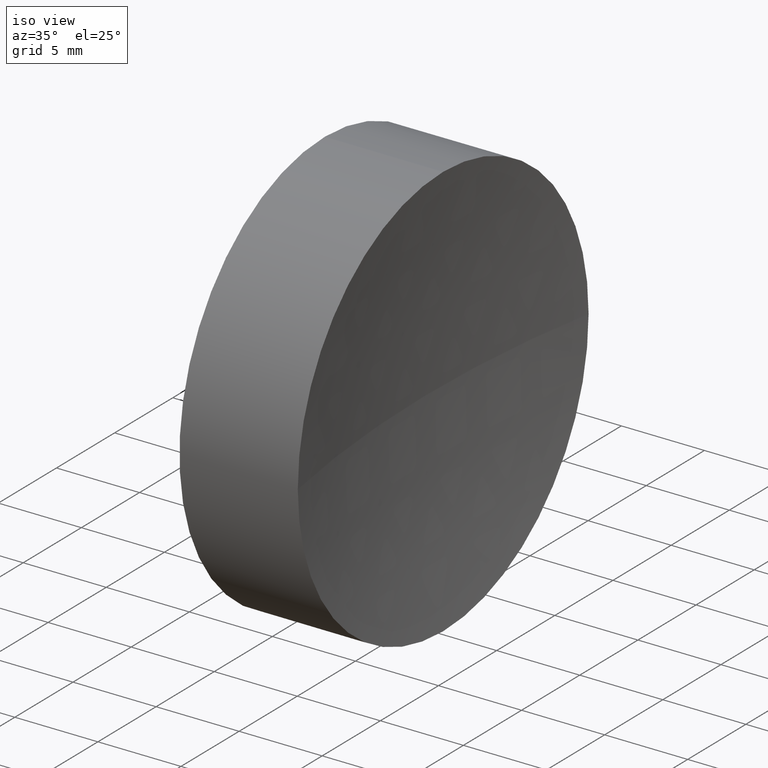
[diagram: clean part render]
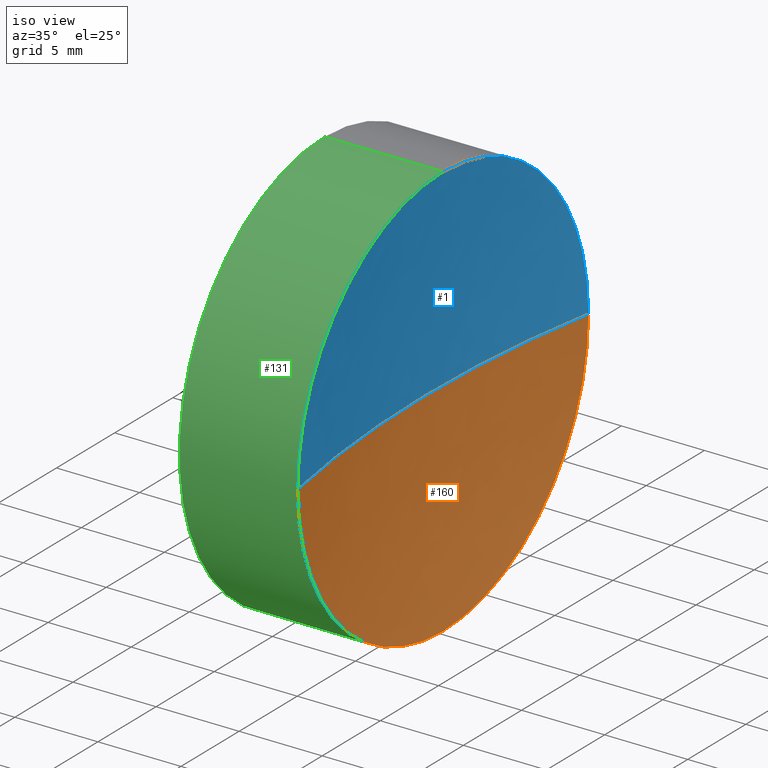
[diagram: same view with three faces highlighted in distinct colors, each labeled with its STEP entity id]
A machine part, iso view with three faces highlighted in distinct colors.
Their STEP definitions:

[orange] entity #160 — the highlighted spherical surface has radius 70 mm.
#2 = EDGE_CURVE ( 'NONE', #163, #71, #20, .T. ) ;
#10 = DIRECTION ( 'NONE',  ( 0.0000000000000000000, 0.0000000000000000000, -1.000000000000000000 ) ) ;
#16 = AXIS2_PLACEMENT_3D ( 'NONE', #50, #171, #142 ) ;
#20 = CIRCLE ( 'NONE', #157, 12.50000000000002500 ) ;
#21 = DIRECTION ( 'NONE',  ( 0.0000000000000000000, 0.0000000000000000000, 1.000000000000000000 ) ) ;
#24 = CARTESIAN_POINT ( 'NONE',  ( 191.0926555310580000, 69.37802112337244900, 0.0000000000000000000 ) ) ;
#29 = CIRCLE ( 'NONE', #180, 69.99999999999998600 ) ;
#30 = VERTEX_POINT ( 'NONE', #154 ) ;
#34 = CARTESIAN_POINT ( 'NONE',  ( 122.2177689612784500, 69.37802112337243400, 0.0000000000000000000 ) ) ;
#40 = DIRECTION ( 'NONE',  ( 0.0000000000000000000, -1.000000000000000000, -1.224646799147353200E-016 ) ) ;
#41 = ORIENTED_EDGE ( 'NONE', *, *, #72, .F. ) ;
#50 = CARTESIAN_POINT ( 'NONE',  ( 191.0926555310580000, 69.37802112337244900, 0.0000000000000000000 ) ) ;
#56 = CIRCLE ( 'NONE', #58, 69.99999999999998600 ) ;
#58 = AXIS2_PLACEMENT_3D ( 'NONE', #24, #66, #40 ) ;
#59 = DIRECTION ( 'NONE',  ( -1.000000000000000000, -0.0000000000000000000, -0.0000000000000000000 ) ) ;
#60 = ORIENTED_EDGE ( 'NONE', *, *, #103, .T. ) ;
#62 = CARTESIAN_POINT ( 'NONE',  ( 122.2177689612784500, 56.87802112337244200, 0.0000000000000000000 ) ) ;
#66 = DIRECTION ( 'NONE',  ( 0.0000000000000000000, -1.224646799147353200E-016, 1.000000000000000000 ) ) ;
#71 = VERTEX_POINT ( 'NONE', #104 ) ;
#72 = EDGE_CURVE ( 'NONE', #71, #74, #115, .T. ) ;
#74 = VERTEX_POINT ( 'NONE', #62 ) ;
#94 = CARTESIAN_POINT ( 'NONE',  ( 122.2177689612784500, 81.87802112337244900, 1.530808498934190300E-015 ) ) ;
#101 = SPHERICAL_SURFACE ( 'NONE', #16, 69.99999999999998600 ) ;
#103 = EDGE_CURVE ( 'NONE', #163, #30, #56, .T. ) ;
#104 = CARTESIAN_POINT ( 'NONE',  ( 122.2177689612784500, 69.37802112337243400, -12.50000000000002500 ) ) ;
#108 = CARTESIAN_POINT ( 'NONE',  ( 122.2177689612784500, 69.37802112337243400, 0.0000000000000000000 ) ) ;
#110 = DIRECTION ( 'NONE',  ( -1.000000000000000000, 0.0000000000000000000, 0.0000000000000000000 ) ) ;
#115 = CIRCLE ( 'NONE', #150, 12.50000000000002500 ) ;
#117 = EDGE_CURVE ( 'NONE', #74, #30, #29, .T. ) ;
#119 = ORIENTED_EDGE ( 'NONE', *, *, #117, .F. ) ;
#122 = FACE_OUTER_BOUND ( 'NONE', #146, .T. ) ;
#137 = DIRECTION ( 'NONE',  ( 0.0000000000000000000, 0.0000000000000000000, 1.000000000000000000 ) ) ;
#142 = DIRECTION ( 'NONE',  ( 0.0000000000000000000, -1.000000000000000000, 0.0000000000000000000 ) ) ;
#146 = EDGE_LOOP ( 'NONE', ( #185, #60, #119, #41 ) ) ;
#150 = AXIS2_PLACEMENT_3D ( 'NONE', #34, #59, #137 ) ;
#154 = CARTESIAN_POINT ( 'NONE',  ( 121.0926555310580100, 69.37802112337244900, 0.0000000000000000000 ) ) ;
#157 = AXIS2_PLACEMENT_3D ( 'NONE', #108, #166, #21 ) ;
#160 = ADVANCED_FACE ( 'NONE', ( #122 ), #101, .F. ) ;
#163 = VERTEX_POINT ( 'NONE', #94 ) ;
#166 = DIRECTION ( 'NONE',  ( -1.000000000000000000, -0.0000000000000000000, -0.0000000000000000000 ) ) ;
#171 = DIRECTION ( 'NONE',  ( 0.0000000000000000000, 0.0000000000000000000, 1.000000000000000000 ) ) ;
#180 = AXIS2_PLACEMENT_3D ( 'NONE', #182, #10, #110 ) ;
#182 = CARTESIAN_POINT ( 'NONE',  ( 191.0926555310580000, 69.37802112337244900, 0.0000000000000000000 ) ) ;
#185 = ORIENTED_EDGE ( 'NONE', *, *, #2, .F. ) ;

[blue] entity #1 — the highlighted spherical surface has radius 70 mm.
#1 = ADVANCED_FACE ( 'NONE', ( #138 ), #97, .F. ) ;
#3 = EDGE_LOOP ( 'NONE', ( #43, #7, #136, #152 ) ) ;
#5 = CARTESIAN_POINT ( 'NONE',  ( 191.0926555310580000, 69.37802112337244900, 0.0000000000000000000 ) ) ;
#7 = ORIENTED_EDGE ( 'NONE', *, *, #64, .F. ) ;
#10 = DIRECTION ( 'NONE',  ( 0.0000000000000000000, 0.0000000000000000000, -1.000000000000000000 ) ) ;
#12 = AXIS2_PLACEMENT_3D ( 'NONE', #178, #38, #128 ) ;
#17 = DIRECTION ( 'NONE',  ( 0.0000000000000000000, 0.0000000000000000000, 1.000000000000000000 ) ) ;
#24 = CARTESIAN_POINT ( 'NONE',  ( 191.0926555310580000, 69.37802112337244900, 0.0000000000000000000 ) ) ;
#29 = CIRCLE ( 'NONE', #180, 69.99999999999998600 ) ;
#30 = VERTEX_POINT ( 'NONE', #154 ) ;
#32 = DIRECTION ( 'NONE',  ( 0.0000000000000000000, 0.0000000000000000000, 1.000000000000000000 ) ) ;
#38 = DIRECTION ( 'NONE',  ( -1.000000000000000000, -0.0000000000000000000, -0.0000000000000000000 ) ) ;
#40 = DIRECTION ( 'NONE',  ( 0.0000000000000000000, -1.000000000000000000, -1.224646799147353200E-016 ) ) ;
#43 = ORIENTED_EDGE ( 'NONE', *, *, #103, .F. ) ;
#44 = AXIS2_PLACEMENT_3D ( 'NONE', #5, #17, #149 ) ;
#56 = CIRCLE ( 'NONE', #58, 69.99999999999998600 ) ;
#58 = AXIS2_PLACEMENT_3D ( 'NONE', #24, #66, #40 ) ;
#62 = CARTESIAN_POINT ( 'NONE',  ( 122.2177689612784500, 56.87802112337244200, 0.0000000000000000000 ) ) ;
#64 = EDGE_CURVE ( 'NONE', #87, #163, #127, .T. ) ;
#66 = DIRECTION ( 'NONE',  ( 0.0000000000000000000, -1.224646799147353200E-016, 1.000000000000000000 ) ) ;
#74 = VERTEX_POINT ( 'NONE', #62 ) ;
#76 = CARTESIAN_POINT ( 'NONE',  ( 122.2177689612784500, 69.37802112337243400, 0.0000000000000000000 ) ) ;
#79 = CARTESIAN_POINT ( 'NONE',  ( 122.2177689612784500, 69.37802112337243400, 12.50000000000002500 ) ) ;
#87 = VERTEX_POINT ( 'NONE', #79 ) ;
#94 = CARTESIAN_POINT ( 'NONE',  ( 122.2177689612784500, 81.87802112337244900, 1.530808498934190300E-015 ) ) ;
#97 = SPHERICAL_SURFACE ( 'NONE', #44, 69.99999999999998600 ) ;
#103 = EDGE_CURVE ( 'NONE', #163, #30, #56, .T. ) ;
#110 = DIRECTION ( 'NONE',  ( -1.000000000000000000, 0.0000000000000000000, 0.0000000000000000000 ) ) ;
#117 = EDGE_CURVE ( 'NONE', #74, #30, #29, .T. ) ;
#120 = CIRCLE ( 'NONE', #12, 12.50000000000002500 ) ;
#127 = CIRCLE ( 'NONE', #170, 12.50000000000002500 ) ;
#128 = DIRECTION ( 'NONE',  ( 0.0000000000000000000, 0.0000000000000000000, 1.000000000000000000 ) ) ;
#136 = ORIENTED_EDGE ( 'NONE', *, *, #162, .F. ) ;
#138 = FACE_OUTER_BOUND ( 'NONE', #3, .T. ) ;
#149 = DIRECTION ( 'NONE',  ( 0.0000000000000000000, -1.000000000000000000, 0.0000000000000000000 ) ) ;
#152 = ORIENTED_EDGE ( 'NONE', *, *, #117, .T. ) ;
#154 = CARTESIAN_POINT ( 'NONE',  ( 121.0926555310580100, 69.37802112337244900, 0.0000000000000000000 ) ) ;
#162 = EDGE_CURVE ( 'NONE', #74, #87, #120, .T. ) ;
#163 = VERTEX_POINT ( 'NONE', #94 ) ;
#164 = DIRECTION ( 'NONE',  ( -1.000000000000000000, -0.0000000000000000000, -0.0000000000000000000 ) ) ;
#170 = AXIS2_PLACEMENT_3D ( 'NONE', #76, #164, #32 ) ;
#178 = CARTESIAN_POINT ( 'NONE',  ( 122.2177689612784500, 69.37802112337243400, 0.0000000000000000000 ) ) ;
#180 = AXIS2_PLACEMENT_3D ( 'NONE', #182, #10, #110 ) ;
#182 = CARTESIAN_POINT ( 'NONE',  ( 191.0926555310580000, 69.37802112337244900, 0.0000000000000000000 ) ) ;

[green] entity #131 — the highlighted cylindrical surface (partial cylindrical patch) has radius 12.5 mm, axis along (-1, -0, -0).
#8 = CARTESIAN_POINT ( 'NONE',  ( 115.0926555349195200, 69.37802112337243400, -12.49999999999999600 ) ) ;
#11 = CARTESIAN_POINT ( 'NONE',  ( 115.0926555349195200, 69.37802112337243400, 12.49999999999999600 ) ) ;
#12 = AXIS2_PLACEMENT_3D ( 'NONE', #178, #38, #128 ) ;
#18 = AXIS2_PLACEMENT_3D ( 'NONE', #52, #93, #141 ) ;
#19 = CARTESIAN_POINT ( 'NONE',  ( 108.9851430021651000, 69.37802112337243400, 12.50000000000001100 ) ) ;
#23 = VERTEX_POINT ( 'NONE', #8 ) ;
#25 = DIRECTION ( 'NONE',  ( -1.000000000000000000, -0.0000000000000000000, -0.0000000000000000000 ) ) ;
#34 = CARTESIAN_POINT ( 'NONE',  ( 122.2177689612784500, 69.37802112337243400, 0.0000000000000000000 ) ) ;
#38 = DIRECTION ( 'NONE',  ( -1.000000000000000000, -0.0000000000000000000, -0.0000000000000000000 ) ) ;
#47 = VECTOR ( 'NONE', #25, 1000.000000000000000 ) ;
#52 = CARTESIAN_POINT ( 'NONE',  ( 115.0926555349195200, 69.37802112337243400, 0.0000000000000000000 ) ) ;
#53 = EDGE_CURVE ( 'NONE', #87, #173, #70, .T. ) ;
#59 = DIRECTION ( 'NONE',  ( -1.000000000000000000, -0.0000000000000000000, -0.0000000000000000000 ) ) ;
#62 = CARTESIAN_POINT ( 'NONE',  ( 122.2177689612784500, 56.87802112337244200, 0.0000000000000000000 ) ) ;
#67 = AXIS2_PLACEMENT_3D ( 'NONE', #167, #181, #155 ) ;
#70 = LINE ( 'NONE', #19, #176 ) ;
#71 = VERTEX_POINT ( 'NONE', #104 ) ;
#72 = EDGE_CURVE ( 'NONE', #71, #74, #115, .T. ) ;
#74 = VERTEX_POINT ( 'NONE', #62 ) ;
#79 = CARTESIAN_POINT ( 'NONE',  ( 122.2177689612784500, 69.37802112337243400, 12.50000000000002500 ) ) ;
#81 = EDGE_CURVE ( 'NONE', #23, #173, #82, .T. ) ;
#82 = CIRCLE ( 'NONE', #18, 12.49999999999999600 ) ;
#87 = VERTEX_POINT ( 'NONE', #79 ) ;
#93 = DIRECTION ( 'NONE',  ( -1.000000000000000000, -0.0000000000000000000, -0.0000000000000000000 ) ) ;
#96 = CYLINDRICAL_SURFACE ( 'NONE', #67, 12.50000000000001100 ) ;
#100 = ORIENTED_EDGE ( 'NONE', *, *, #162, .T. ) ;
#104 = CARTESIAN_POINT ( 'NONE',  ( 122.2177689612784500, 69.37802112337243400, -12.50000000000002500 ) ) ;
#105 = EDGE_LOOP ( 'NONE', ( #113, #145, #100, #144, #133 ) ) ;
#106 = DIRECTION ( 'NONE',  ( -1.000000000000000000, -0.0000000000000000000, -0.0000000000000000000 ) ) ;
#112 = FACE_OUTER_BOUND ( 'NONE', #105, .T. ) ;
#113 = ORIENTED_EDGE ( 'NONE', *, *, #147, .F. ) ;
#115 = CIRCLE ( 'NONE', #150, 12.50000000000002500 ) ;
#118 = LINE ( 'NONE', #140, #47 ) ;
#120 = CIRCLE ( 'NONE', #12, 12.50000000000002500 ) ;
#128 = DIRECTION ( 'NONE',  ( 0.0000000000000000000, 0.0000000000000000000, 1.000000000000000000 ) ) ;
#131 = ADVANCED_FACE ( 'NONE', ( #112 ), #96, .T. ) ;
#133 = ORIENTED_EDGE ( 'NONE', *, *, #81, .F. ) ;
#137 = DIRECTION ( 'NONE',  ( 0.0000000000000000000, 0.0000000000000000000, 1.000000000000000000 ) ) ;
#140 = CARTESIAN_POINT ( 'NONE',  ( 108.9851430021651000, 69.37802112337243400, -12.50000000000001100 ) ) ;
#141 = DIRECTION ( 'NONE',  ( 0.0000000000000000000, 0.0000000000000000000, 1.000000000000000000 ) ) ;
#144 = ORIENTED_EDGE ( 'NONE', *, *, #53, .T. ) ;
#145 = ORIENTED_EDGE ( 'NONE', *, *, #72, .T. ) ;
#147 = EDGE_CURVE ( 'NONE', #71, #23, #118, .T. ) ;
#150 = AXIS2_PLACEMENT_3D ( 'NONE', #34, #59, #137 ) ;
#155 = DIRECTION ( 'NONE',  ( 0.0000000000000000000, 0.0000000000000000000, 1.000000000000000000 ) ) ;
#162 = EDGE_CURVE ( 'NONE', #74, #87, #120, .T. ) ;
#167 = CARTESIAN_POINT ( 'NONE',  ( 108.9851430021651000, 69.37802112337243400, 0.0000000000000000000 ) ) ;
#173 = VERTEX_POINT ( 'NONE', #11 ) ;
#176 = VECTOR ( 'NONE', #106, 1000.000000000000000 ) ;
#178 = CARTESIAN_POINT ( 'NONE',  ( 122.2177689612784500, 69.37802112337243400, 0.0000000000000000000 ) ) ;
#181 = DIRECTION ( 'NONE',  ( -1.000000000000000000, -0.0000000000000000000, -0.0000000000000000000 ) ) ;